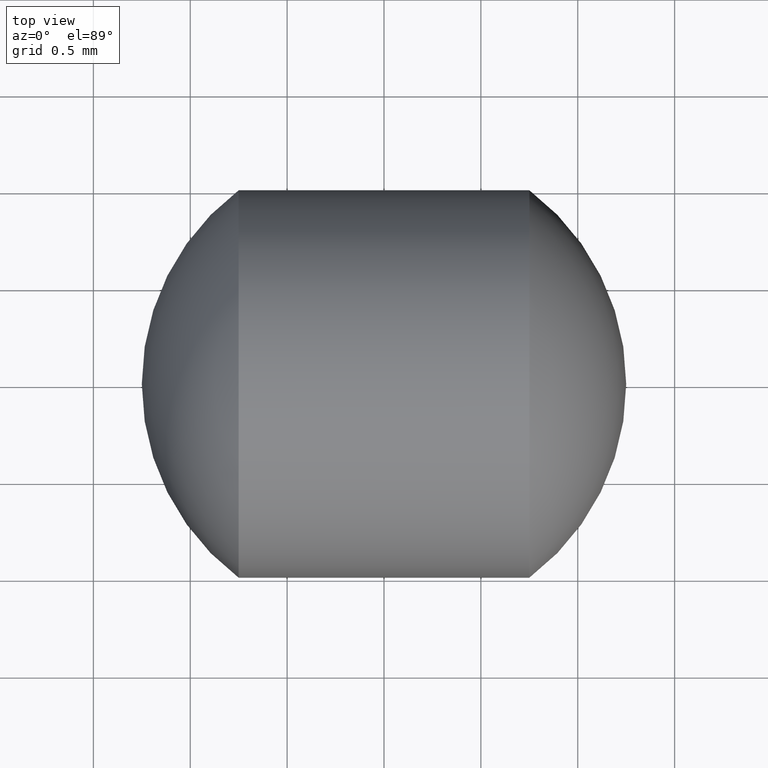
[diagram: clean part render]
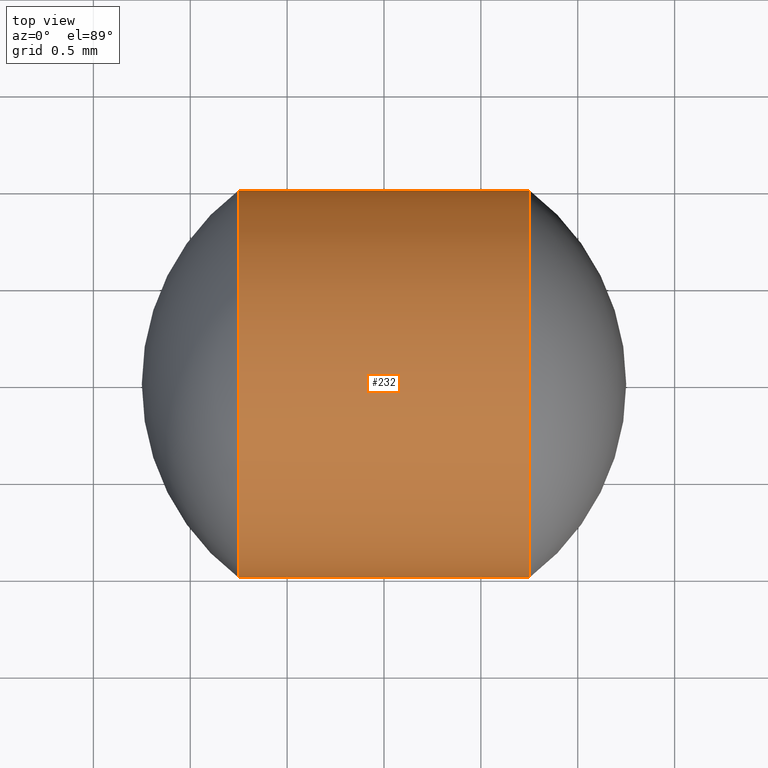
[diagram: same view with one face highlighted and labeled with its STEP entity id]
A machine part, top view. The second image highlights one B-rep face of the part: STEP entity #232.
In plain terms, the highlighted cylindrical surface (partial cylindrical patch) has radius 1 mm, axis along (-1, 0, -0).
Its self-contained STEP definition (entity closure, byte-faithful):
#3 = DIRECTION ( 'NONE',  ( -1.000000000000000000, 4.187626049147712300E-017, -0.0000000000000000000 ) ) ;
#12 = LINE ( 'NONE', #295, #23 ) ;
#13 = AXIS2_PLACEMENT_3D ( 'NONE', #236, #3, #261 ) ;
#15 = VERTEX_POINT ( 'NONE', #54 ) ;
#19 = CYLINDRICAL_SURFACE ( 'NONE', #187, 1.000000000000000000 ) ;
#21 = CARTESIAN_POINT ( 'NONE',  ( -0.7500000000000001100, -0.9999999999999997800, -1.224646799147353000E-016 ) ) ;
#23 = VECTOR ( 'NONE', #24, 1000.000000000000000 ) ;
#24 = DIRECTION ( 'NONE',  ( -1.000000000000000000, 4.187626049147712300E-017, -0.0000000000000000000 ) ) ;
#36 = CARTESIAN_POINT ( 'NONE',  ( 0.7500000000000002200, -1.000000000000000200, 0.0000000000000000000 ) ) ;
#40 = EDGE_LOOP ( 'NONE', ( #231, #110, #208, #114 ) ) ;
#54 = CARTESIAN_POINT ( 'NONE',  ( -0.7500000000000001100, 1.000000000000000000, 0.0000000000000000000 ) ) ;
#88 = CARTESIAN_POINT ( 'NONE',  ( -0.7500000000000001100, 1.160500205169223100E-016, 0.0000000000000000000 ) ) ;
#110 = ORIENTED_EDGE ( 'NONE', *, *, #201, .T. ) ;
#114 = ORIENTED_EDGE ( 'NONE', *, *, #154, .F. ) ;
#126 = DIRECTION ( 'NONE',  ( 0.0000000000000000000, -1.000000000000000000, 0.0000000000000000000 ) ) ;
#134 = CARTESIAN_POINT ( 'NONE',  ( 0.7500000000000002200, 1.000000000000000200, 1.224646799147353500E-016 ) ) ;
#138 = CARTESIAN_POINT ( 'NONE',  ( -1.619607495069033800, 1.000000000000000200, 1.224646799147353200E-016 ) ) ;
#141 = VECTOR ( 'NONE', #303, 1000.000000000000000 ) ;
#142 = EDGE_CURVE ( 'NONE', #290, #149, #242, .T. ) ;
#149 = VERTEX_POINT ( 'NONE', #134 ) ;
#154 = EDGE_CURVE ( 'NONE', #290, #198, #12, .T. ) ;
#178 = DIRECTION ( 'NONE',  ( -1.000000000000000000, 4.187626049147712300E-017, -0.0000000000000000000 ) ) ;
#183 = CIRCLE ( 'NONE', #289, 1.000000000000000200 ) ;
#187 = AXIS2_PLACEMENT_3D ( 'NONE', #271, #217, #126 ) ;
#195 = LINE ( 'NONE', #138, #141 ) ;
#198 = VERTEX_POINT ( 'NONE', #21 ) ;
#201 = EDGE_CURVE ( 'NONE', #149, #15, #195, .T. ) ;
#203 = DIRECTION ( 'NONE',  ( 0.0000000000000000000, -1.000000000000000000, 0.0000000000000000000 ) ) ;
#207 = FACE_OUTER_BOUND ( 'NONE', #40, .T. ) ;
#208 = ORIENTED_EDGE ( 'NONE', *, *, #265, .F. ) ;
#217 = DIRECTION ( 'NONE',  ( -1.000000000000000000, 4.187626049147712300E-017, -0.0000000000000000000 ) ) ;
#231 = ORIENTED_EDGE ( 'NONE', *, *, #142, .T. ) ;
#232 = ADVANCED_FACE ( 'NONE', ( #207 ), #19, .T. ) ;
#236 = CARTESIAN_POINT ( 'NONE',  ( 0.7500000000000002200, 5.323562977970660000E-017, 0.0000000000000000000 ) ) ;
#242 = CIRCLE ( 'NONE', #13, 1.000000000000000200 ) ;
#261 = DIRECTION ( 'NONE',  ( 0.0000000000000000000, -1.000000000000000000, 0.0000000000000000000 ) ) ;
#265 = EDGE_CURVE ( 'NONE', #198, #15, #183, .T. ) ;
#271 = CARTESIAN_POINT ( 'NONE',  ( -1.619607495069033800, 1.524659305057740600E-016, 0.0000000000000000000 ) ) ;
#289 = AXIS2_PLACEMENT_3D ( 'NONE', #88, #178, #203 ) ;
#290 = VERTEX_POINT ( 'NONE', #36 ) ;
#295 = CARTESIAN_POINT ( 'NONE',  ( -1.619607495069033800, -0.9999999999999997800, 0.0000000000000000000 ) ) ;
#303 = DIRECTION ( 'NONE',  ( -1.000000000000000000, 4.187626049147712300E-017, -0.0000000000000000000 ) ) ;